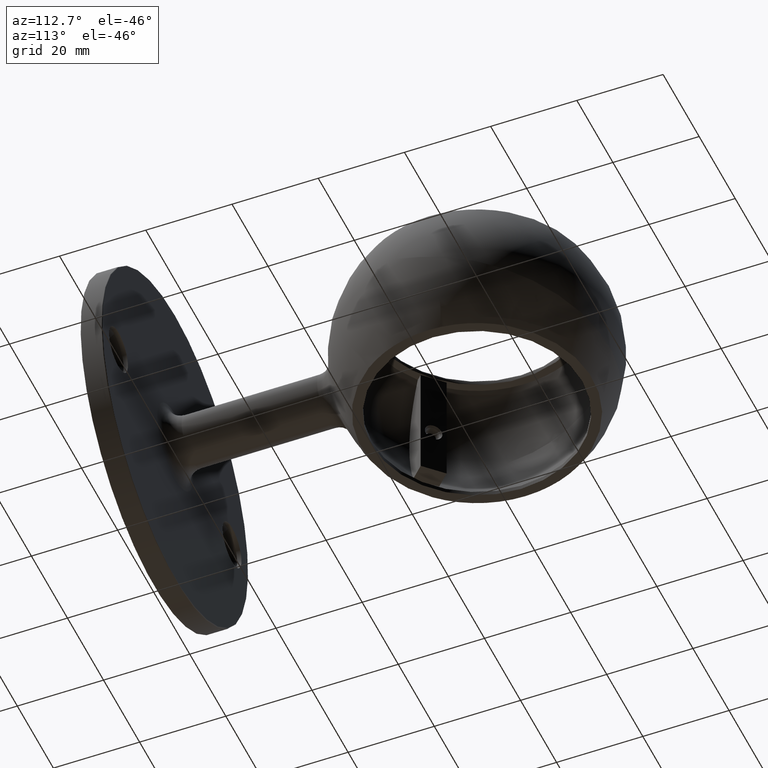
[diagram: clean part render]
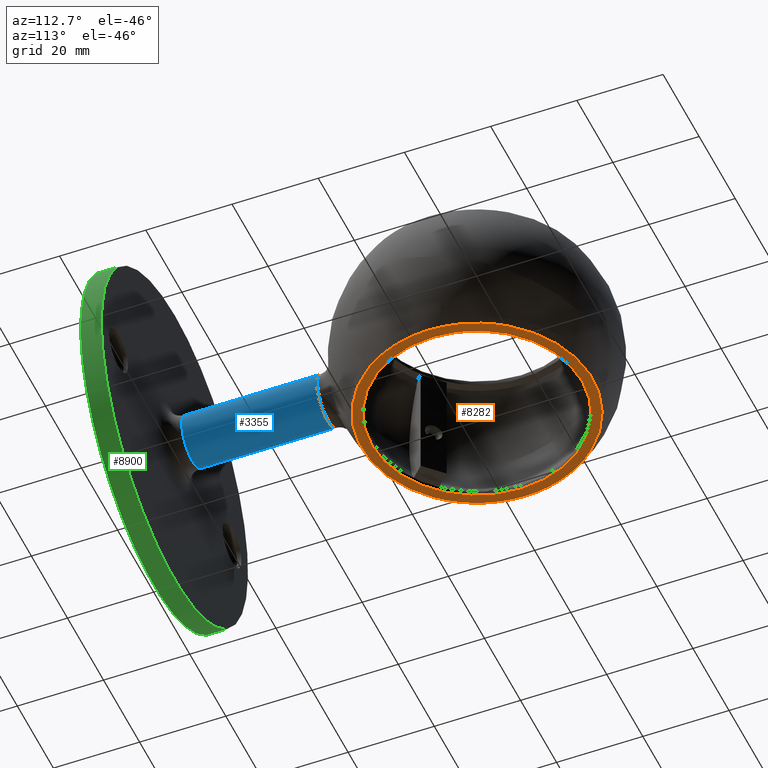
[diagram: same view with three faces highlighted in distinct colors, each labeled with its STEP entity id]
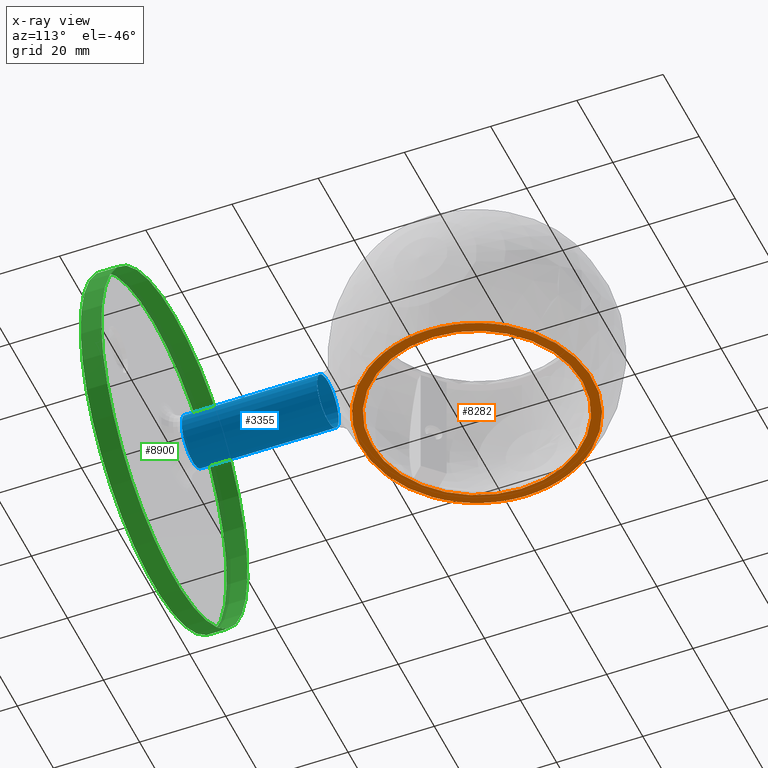
[diagram: x-ray of the same camera — body ghosted, the three highlighted faces saturated]
A machine part, auxiliary view with three faces highlighted in distinct colors.
The next image is the same camera in x-ray (body ghosted, the three faces saturated) — at least one of them is partly hidden behind the body in this view.
Their STEP definitions:

[orange] entity #8282 — the highlighted planar face has unit normal (0, 0, 1).
#206 = ORIENTED_EDGE ( 'NONE', *, *, #7302, .T. ) ;
#485 = EDGE_LOOP ( 'NONE', ( #4809 ) ) ;
#525 = CARTESIAN_POINT ( 'NONE',  ( 26.79085664923762522, 75.00000000000000000, -17.50000000000000000 ) ) ;
#614 = AXIS2_PLACEMENT_3D ( 'NONE', #4663, #2360, #813 ) ;
#813 = DIRECTION ( 'NONE',  ( 1.000000000000000000, 0.000000000000000000, 0.000000000000000000 ) ) ;
#1665 = DIRECTION ( 'NONE',  ( -0.000000000000000000, -0.000000000000000000, 1.000000000000000000 ) ) ;
#1896 = AXIS2_PLACEMENT_3D ( 'NONE', #6439, #1665, #9402 ) ;
#2360 = DIRECTION ( 'NONE',  ( 0.000000000000000000, -0.000000000000000000, 1.000000000000000000 ) ) ;
#2388 = EDGE_CURVE ( 'NONE', #8006, #8006, #9122, .T. ) ;
#2399 = DIRECTION ( 'NONE',  ( -0.000000000000000000, -0.000000000000000000, 1.000000000000000000 ) ) ;
#2794 = AXIS2_PLACEMENT_3D ( 'NONE', #7166, #2399, #4736 ) ;
#2840 = CARTESIAN_POINT ( 'NONE',  ( 24.44999999999999929, 75.00000000000000000, -17.50000000000000000 ) ) ;
#4663 = CARTESIAN_POINT ( 'NONE',  ( 0.000000000000000000, 2.593722331479062689E-14, -17.50000000000000000 ) ) ;
#4736 = DIRECTION ( 'NONE',  ( 1.000000000000000000, 0.000000000000000000, 0.000000000000000000 ) ) ;
#4809 = ORIENTED_EDGE ( 'NONE', *, *, #2388, .F. ) ;
#4966 = CIRCLE ( 'NONE', #2794, 24.44999999999999929 ) ;
#5496 = PLANE ( 'NONE',  #614 ) ;
#6170 = VERTEX_POINT ( 'NONE', #2840 ) ;
#6439 = CARTESIAN_POINT ( 'NONE',  ( 0.000000000000000000, 75.00000000000000000, -17.50000000000000000 ) ) ;
#7166 = CARTESIAN_POINT ( 'NONE',  ( 0.000000000000000000, 75.00000000000000000, -17.50000000000000000 ) ) ;
#7302 = EDGE_CURVE ( 'NONE', #6170, #6170, #4966, .T. ) ;
#7336 = EDGE_LOOP ( 'NONE', ( #206 ) ) ;
#7785 = FACE_BOUND ( 'NONE', #7336, .T. ) ;
#8006 = VERTEX_POINT ( 'NONE', #525 ) ;
#8282 = ADVANCED_FACE ( 'NONE', ( #9964, #7785 ), #5496, .F. ) ;
#9122 = CIRCLE ( 'NONE', #1896, 26.79085664923762522 ) ;
#9402 = DIRECTION ( 'NONE',  ( 1.000000000000000000, 0.000000000000000000, 0.000000000000000000 ) ) ;
#9964 = FACE_OUTER_BOUND ( 'NONE', #485, .T. ) ;

[blue] entity #3355 — the highlighted cylindrical surface (bore or boss wall) has radius 6 mm, axis along (-0, -1, -0).
#554 = VERTEX_POINT ( 'NONE', #6076 ) ;
#1180 = AXIS2_PLACEMENT_3D ( 'NONE', #8247, #5757, #3565 ) ;
#1187 = DIRECTION ( 'NONE',  ( 0.000000000000000000, 0.000000000000000000, -1.000000000000000000 ) ) ;
#1337 = EDGE_LOOP ( 'NONE', ( #1737 ) ) ;
#1492 = ORIENTED_EDGE ( 'NONE', *, *, #4326, .T. ) ;
#1737 = ORIENTED_EDGE ( 'NONE', *, *, #9022, .T. ) ;
#2259 = VERTEX_POINT ( 'NONE', #5220 ) ;
#2298 = FACE_OUTER_BOUND ( 'NONE', #1337, .T. ) ;
#3036 = FACE_OUTER_BOUND ( 'NONE', #4506, .T. ) ;
#3150 = CARTESIAN_POINT ( 'NONE',  ( 0.000000000000000000, 40.41676706839325561, 0.000000000000000000 ) ) ;
#3355 = ADVANCED_FACE ( 'NONE', ( #2298, #3036 ), #4365, .T. ) ;
#3565 = DIRECTION ( 'NONE',  ( 0.000000000000000000, 0.000000000000000000, 1.000000000000000000 ) ) ;
#3995 = DIRECTION ( 'NONE',  ( -0.000000000000000000, -1.000000000000000000, -0.000000000000000000 ) ) ;
#4278 = DIRECTION ( 'NONE',  ( -0.000000000000000000, -1.000000000000000000, -0.000000000000000000 ) ) ;
#4326 = EDGE_CURVE ( 'NONE', #2259, #2259, #4711, .T. ) ;
#4365 = CYLINDRICAL_SURFACE ( 'NONE', #5421, 6.000000000000000888 ) ;
#4506 = EDGE_LOOP ( 'NONE', ( #1492 ) ) ;
#4711 = CIRCLE ( 'NONE', #1180, 6.000000000000000888 ) ;
#5220 = CARTESIAN_POINT ( 'NONE',  ( 0.000000000000000000, 9.000000000014551915, 6.000000000000000888 ) ) ;
#5421 = AXIS2_PLACEMENT_3D ( 'NONE', #5868, #4278, #1187 ) ;
#5757 = DIRECTION ( 'NONE',  ( 0.000000000000000000, 1.000000000000000000, 0.000000000000000000 ) ) ;
#5868 = CARTESIAN_POINT ( 'NONE',  ( 0.000000000000000000, 500000.0000000000582, 0.000000000000000000 ) ) ;
#6076 = CARTESIAN_POINT ( 'NONE',  ( 0.000000000000000000, 40.41676706839325561, 6.000000000000000888 ) ) ;
#6311 = CIRCLE ( 'NONE', #7618, 6.000000000000000888 ) ;
#6366 = DIRECTION ( 'NONE',  ( 0.000000000000000000, 0.000000000000000000, 1.000000000000000000 ) ) ;
#7618 = AXIS2_PLACEMENT_3D ( 'NONE', #3150, #3995, #6366 ) ;
#8247 = CARTESIAN_POINT ( 'NONE',  ( 0.000000000000000000, 9.000000000014551915, 0.000000000000000000 ) ) ;
#9022 = EDGE_CURVE ( 'NONE', #554, #554, #6311, .T. ) ;

[green] entity #8900 — the highlighted cylindrical surface (bore or boss wall) has radius 40.5 mm, axis along (-0, -1, -0).
#322 = CYLINDRICAL_SURFACE ( 'NONE', #2711, 40.50000000000000000 ) ;
#917 = VERTEX_POINT ( 'NONE', #4491 ) ;
#2306 = DIRECTION ( 'NONE',  ( 0.000000000000000000, 0.000000000000000000, 1.000000000000000000 ) ) ;
#2590 = DIRECTION ( 'NONE',  ( -0.000000000000000000, -1.000000000000000000, -0.000000000000000000 ) ) ;
#2625 = DIRECTION ( 'NONE',  ( 0.000000000000000000, 0.000000000000000000, 1.000000000000000000 ) ) ;
#2711 = AXIS2_PLACEMENT_3D ( 'NONE', #8853, #7249, #8048 ) ;
#4135 = CIRCLE ( 'NONE', #8867, 40.50000000000000000 ) ;
#4245 = EDGE_CURVE ( 'NONE', #917, #917, #4463, .T. ) ;
#4463 = CIRCLE ( 'NONE', #7261, 40.50000000000000000 ) ;
#4491 = CARTESIAN_POINT ( 'NONE',  ( 0.000000000000000000, 4.800000000000000711, 40.50000000000000000 ) ) ;
#4823 = FACE_OUTER_BOUND ( 'NONE', #5547, .T. ) ;
#4856 = CARTESIAN_POINT ( 'NONE',  ( 0.000000000000000000, 4.800000000000000711, 0.000000000000000000 ) ) ;
#5036 = ORIENTED_EDGE ( 'NONE', *, *, #5772, .T. ) ;
#5547 = EDGE_LOOP ( 'NONE', ( #9066 ) ) ;
#5772 = EDGE_CURVE ( 'NONE', #9819, #9819, #4135, .T. ) ;
#6948 = DIRECTION ( 'NONE',  ( 0.000000000000000000, 1.000000000000000000, 0.000000000000000000 ) ) ;
#7231 = EDGE_LOOP ( 'NONE', ( #5036 ) ) ;
#7249 = DIRECTION ( 'NONE',  ( -0.000000000000000000, -1.000000000000000000, -0.000000000000000000 ) ) ;
#7261 = AXIS2_PLACEMENT_3D ( 'NONE', #4856, #2590, #2625 ) ;
#7622 = CARTESIAN_POINT ( 'NONE',  ( 0.000000000000000000, 0.000000000000000000, 40.50000000000000000 ) ) ;
#8048 = DIRECTION ( 'NONE',  ( 0.000000000000000000, 0.000000000000000000, -1.000000000000000000 ) ) ;
#8853 = CARTESIAN_POINT ( 'NONE',  ( 0.000000000000000000, 5.000000000000000000, 0.000000000000000000 ) ) ;
#8867 = AXIS2_PLACEMENT_3D ( 'NONE', #10068, #6948, #2306 ) ;
#8900 = ADVANCED_FACE ( 'NONE', ( #4823, #9952 ), #322, .T. ) ;
#9066 = ORIENTED_EDGE ( 'NONE', *, *, #4245, .T. ) ;
#9819 = VERTEX_POINT ( 'NONE', #7622 ) ;
#9952 = FACE_OUTER_BOUND ( 'NONE', #7231, .T. ) ;
#10068 = CARTESIAN_POINT ( 'NONE',  ( 0.000000000000000000, 0.000000000000000000, 0.000000000000000000 ) ) ;